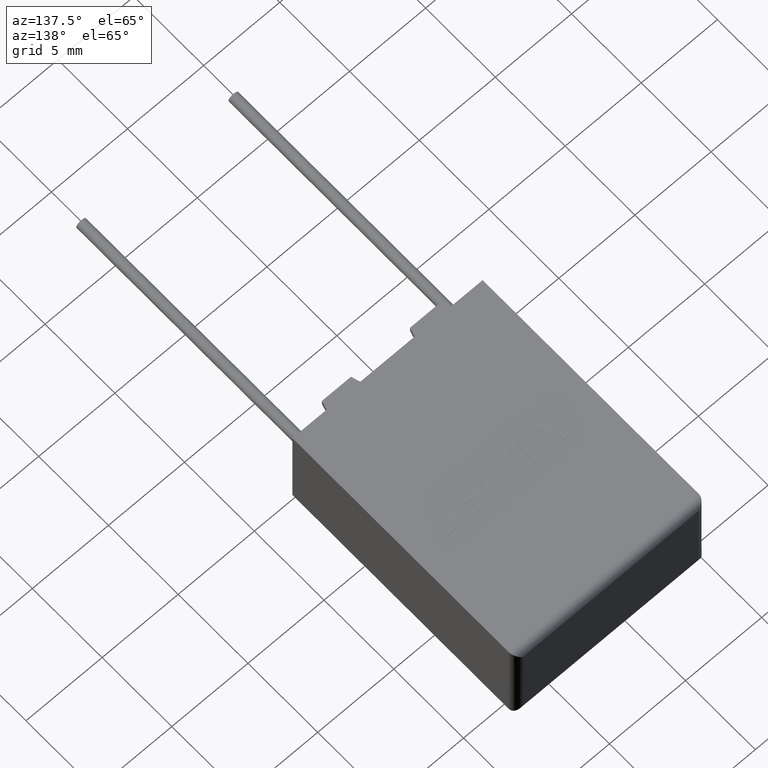
[diagram: clean part render]
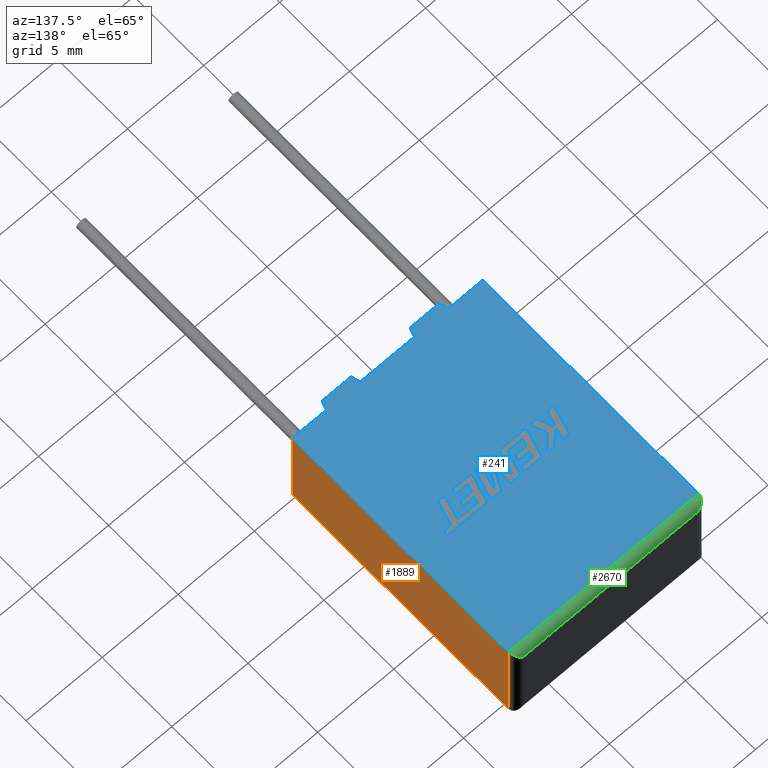
[diagram: same view with three faces highlighted in distinct colors, each labeled with its STEP entity id]
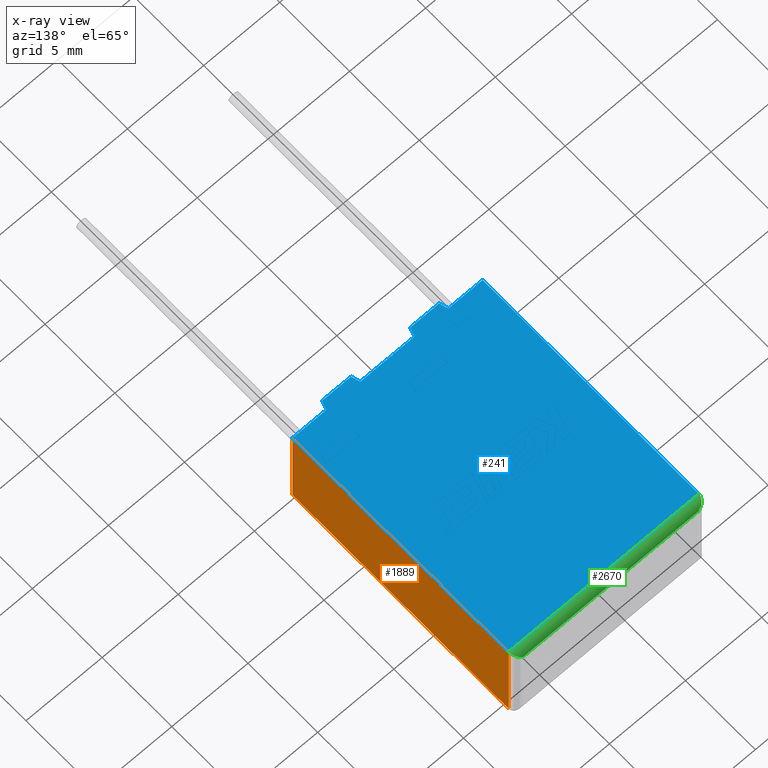
[diagram: x-ray of the same camera — body ghosted, the three highlighted faces saturated]
A machine part, auxiliary view with three faces highlighted in distinct colors.
The next image is the same camera in x-ray (body ghosted, the three faces saturated) — at least one of them is partly hidden behind the body in this view.
Their STEP definitions:

[orange] entity #1889 — the highlighted planar face has unit normal (-1, 0, 0).
#214 = CARTESIAN_POINT ( 'NONE',  ( 12.50000000000000000, 0.0000000000000000000, 6.500000000000000000 ) ) ;
#268 = DIRECTION ( 'NONE',  ( 0.0000000000000000000, 0.0000000000000000000, 1.000000000000000000 ) ) ;
#272 = EDGE_CURVE ( 'NONE', #1035, #3236, #1543, .T. ) ;
#351 = CARTESIAN_POINT ( 'NONE',  ( 12.50000000000000000, 0.0000000000000000000, 6.500000000000000000 ) ) ;
#511 = CARTESIAN_POINT ( 'NONE',  ( 12.50000000000000000, 0.0000000000000000000, 6.500000000000000000 ) ) ;
#590 = LINE ( 'NONE', #2621, #3024 ) ;
#599 = EDGE_CURVE ( 'NONE', #3121, #1035, #2604, .T. ) ;
#623 = CARTESIAN_POINT ( 'NONE',  ( 12.50000000000000000, 0.0000000000000000000, 6.500000000000000000 ) ) ;
#659 = LINE ( 'NONE', #623, #775 ) ;
#707 = ORIENTED_EDGE ( 'NONE', *, *, #599, .T. ) ;
#708 = DIRECTION ( 'NONE',  ( -0.0000000000000000000, -0.0000000000000000000, -1.000000000000000000 ) ) ;
#775 = VECTOR ( 'NONE', #1250, 1000.000000000000000 ) ;
#816 = FACE_OUTER_BOUND ( 'NONE', #2241, .T. ) ;
#1031 = EDGE_CURVE ( 'NONE', #3236, #2061, #590, .T. ) ;
#1035 = VERTEX_POINT ( 'NONE', #3159 ) ;
#1172 = VECTOR ( 'NONE', #708, 1000.000000000000000 ) ;
#1199 = ORIENTED_EDGE ( 'NONE', *, *, #1031, .T. ) ;
#1250 = DIRECTION ( 'NONE',  ( 0.0000000000000000000, 1.000000000000000000, 0.0000000000000000000 ) ) ;
#1356 = DIRECTION ( 'NONE',  ( 0.0000000000000000000, 1.000000000000000000, 0.0000000000000000000 ) ) ;
#1478 = CARTESIAN_POINT ( 'NONE',  ( 12.50000000000000000, 15.50000000000000000, 0.0000000000000000000 ) ) ;
#1499 = PLANE ( 'NONE',  #3210 ) ;
#1543 = LINE ( 'NONE', #2837, #3173 ) ;
#1590 = EDGE_CURVE ( 'NONE', #3121, #2061, #659, .T. ) ;
#1738 = DIRECTION ( 'NONE',  ( -1.000000000000000000, 0.0000000000000000000, 0.0000000000000000000 ) ) ;
#1889 = ADVANCED_FACE ( 'NONE', ( #816 ), #1499, .F. ) ;
#1948 = ORIENTED_EDGE ( 'NONE', *, *, #272, .T. ) ;
#2061 = VERTEX_POINT ( 'NONE', #2356 ) ;
#2241 = EDGE_LOOP ( 'NONE', ( #1948, #1199, #2643, #707 ) ) ;
#2356 = CARTESIAN_POINT ( 'NONE',  ( 12.50000000000000000, 15.50000000000000000, 6.500000000000000000 ) ) ;
#2604 = LINE ( 'NONE', #214, #1172 ) ;
#2621 = CARTESIAN_POINT ( 'NONE',  ( 12.50000000000000000, 15.50000000000000000, 6.500000000000000000 ) ) ;
#2643 = ORIENTED_EDGE ( 'NONE', *, *, #1590, .F. ) ;
#2837 = CARTESIAN_POINT ( 'NONE',  ( 12.50000000000000000, 0.0000000000000000000, 0.0000000000000000000 ) ) ;
#3024 = VECTOR ( 'NONE', #3149, 1000.000000000000000 ) ;
#3121 = VERTEX_POINT ( 'NONE', #351 ) ;
#3149 = DIRECTION ( 'NONE',  ( -0.0000000000000000000, -0.0000000000000000000, 1.000000000000000000 ) ) ;
#3159 = CARTESIAN_POINT ( 'NONE',  ( 12.50000000000000000, 0.0000000000000000000, 0.0000000000000000000 ) ) ;
#3173 = VECTOR ( 'NONE', #1356, 1000.000000000000000 ) ;
#3210 = AXIS2_PLACEMENT_3D ( 'NONE', #511, #1738, #268 ) ;
#3236 = VERTEX_POINT ( 'NONE', #1478 ) ;

[blue] entity #241 — the highlighted planar face has unit normal (0, 0, -1).
#122 = LINE ( 'NONE', #1522, #859 ) ;
#168 = VERTEX_POINT ( 'NONE', #547 ) ;
#185 = VERTEX_POINT ( 'NONE', #845 ) ;
#186 = CARTESIAN_POINT ( 'NONE',  ( 0.0000000000000000000, 15.50000000000000000, 6.500000000000000000 ) ) ;
#241 = ADVANCED_FACE ( 'NONE', ( #2654 ), #2095, .F. ) ;
#271 = CARTESIAN_POINT ( 'NONE',  ( 10.10000000000000100, -0.4999999999999998900, 6.500000000000000000 ) ) ;
#297 = CARTESIAN_POINT ( 'NONE',  ( 10.25000000000000000, 1.377727649040772600E-016, 6.500000000000000000 ) ) ;
#310 = LINE ( 'NONE', #2049, #2891 ) ;
#331 = CARTESIAN_POINT ( 'NONE',  ( 2.250000000000000400, 0.0000000000000000000, 6.500000000000000000 ) ) ;
#351 = CARTESIAN_POINT ( 'NONE',  ( 12.50000000000000000, 0.0000000000000000000, 6.500000000000000000 ) ) ;
#414 = VECTOR ( 'NONE', #3065, 1000.000000000000000 ) ;
#528 = CARTESIAN_POINT ( 'NONE',  ( 10.10000000000000100, -0.4999999999999998900, 6.500000000000000000 ) ) ;
#547 = CARTESIAN_POINT ( 'NONE',  ( 10.25000000000000000, 0.0000000000000000000, 6.500000000000000000 ) ) ;
#552 = DIRECTION ( 'NONE',  ( 1.000000000000000000, 0.0000000000000000000, 0.0000000000000000000 ) ) ;
#559 = CARTESIAN_POINT ( 'NONE',  ( 4.312500000000000000, -0.5000000000000000000, 6.500000000000000000 ) ) ;
#623 = CARTESIAN_POINT ( 'NONE',  ( 12.50000000000000000, 0.0000000000000000000, 6.500000000000000000 ) ) ;
#658 = VECTOR ( 'NONE', #2472, 1000.000000000000000 ) ;
#659 = LINE ( 'NONE', #623, #775 ) ;
#775 = VECTOR ( 'NONE', #1250, 1000.000000000000000 ) ;
#837 = VERTEX_POINT ( 'NONE', #528 ) ;
#845 = CARTESIAN_POINT ( 'NONE',  ( 0.0000000000000000000, 0.0000000000000000000, 6.500000000000000000 ) ) ;
#859 = VECTOR ( 'NONE', #1813, 1000.000000000000200 ) ;
#861 = VECTOR ( 'NONE', #2422, 1000.000000000000000 ) ;
#901 = LINE ( 'NONE', #297, #2084 ) ;
#1041 = VERTEX_POINT ( 'NONE', #1892 ) ;
#1056 = VECTOR ( 'NONE', #1185, 1000.000000000000000 ) ;
#1072 = DIRECTION ( 'NONE',  ( 0.2873478855663453300, -0.9578262852211513200, 0.0000000000000000000 ) ) ;
#1138 = LINE ( 'NONE', #1149, #1056 ) ;
#1149 = CARTESIAN_POINT ( 'NONE',  ( 0.0000000000000000000, 0.0000000000000000000, 6.500000000000000000 ) ) ;
#1160 = CARTESIAN_POINT ( 'NONE',  ( 8.037499999999999600, 2.732493170597532200E-016, 6.500000000000000000 ) ) ;
#1185 = DIRECTION ( 'NONE',  ( 1.000000000000000000, 0.0000000000000000000, 0.0000000000000000000 ) ) ;
#1208 = ORIENTED_EDGE ( 'NONE', *, *, #2193, .F. ) ;
#1237 = LINE ( 'NONE', #271, #3031 ) ;
#1248 = ORIENTED_EDGE ( 'NONE', *, *, #1590, .T. ) ;
#1250 = DIRECTION ( 'NONE',  ( 0.0000000000000000000, 1.000000000000000000, 0.0000000000000000000 ) ) ;
#1257 = ORIENTED_EDGE ( 'NONE', *, *, #2776, .T. ) ;
#1262 = LINE ( 'NONE', #2840, #2681 ) ;
#1270 = VECTOR ( 'NONE', #1819, 1000.000000000000200 ) ;
#1289 = CARTESIAN_POINT ( 'NONE',  ( 2.400000000000000400, -0.4999999999999998900, 6.500000000000000000 ) ) ;
#1342 = LINE ( 'NONE', #2187, #2491 ) ;
#1409 = ORIENTED_EDGE ( 'NONE', *, *, #3018, .T. ) ;
#1455 = EDGE_LOOP ( 'NONE', ( #1248, #2270, #1409, #1257, #2586, #2313, #3160, #2018, #2605, #1208, #2075, #2514 ) ) ;
#1462 = EDGE_CURVE ( 'NONE', #3154, #1041, #2191, .T. ) ;
#1522 = CARTESIAN_POINT ( 'NONE',  ( 8.187500000000000000, -0.5000000000000000000, 6.500000000000000000 ) ) ;
#1590 = EDGE_CURVE ( 'NONE', #3121, #2061, #659, .T. ) ;
#1622 = DIRECTION ( 'NONE',  ( 0.0000000000000000000, 0.0000000000000000000, -1.000000000000000000 ) ) ;
#1752 = VERTEX_POINT ( 'NONE', #1160 ) ;
#1771 = EDGE_CURVE ( 'NONE', #1041, #1752, #1138, .T. ) ;
#1813 = DIRECTION ( 'NONE',  ( -0.2873478855663451600, 0.9578262852211514300, 0.0000000000000000000 ) ) ;
#1819 = DIRECTION ( 'NONE',  ( 0.2873478855663451600, 0.9578262852211514300, 0.0000000000000000000 ) ) ;
#1842 = CARTESIAN_POINT ( 'NONE',  ( 0.0000000000000000000, 0.0000000000000000000, 6.500000000000000000 ) ) ;
#1892 = CARTESIAN_POINT ( 'NONE',  ( 4.462500000000000400, 2.732493170597532200E-016, 6.500000000000000000 ) ) ;
#1894 = EDGE_CURVE ( 'NONE', #1910, #3154, #2977, .T. ) ;
#1910 = VERTEX_POINT ( 'NONE', #2753 ) ;
#1925 = EDGE_CURVE ( 'NONE', #2175, #1752, #122, .T. ) ;
#1943 = EDGE_CURVE ( 'NONE', #168, #3121, #310, .T. ) ;
#2018 = ORIENTED_EDGE ( 'NONE', *, *, #1771, .T. ) ;
#2049 = CARTESIAN_POINT ( 'NONE',  ( 0.0000000000000000000, 0.0000000000000000000, 6.500000000000000000 ) ) ;
#2061 = VERTEX_POINT ( 'NONE', #2356 ) ;
#2075 = ORIENTED_EDGE ( 'NONE', *, *, #2543, .F. ) ;
#2083 = DIRECTION ( 'NONE',  ( -0.2873478855663453300, -0.9578262852211513200, 0.0000000000000000000 ) ) ;
#2084 = VECTOR ( 'NONE', #2083, 1000.000000000000200 ) ;
#2095 = PLANE ( 'NONE',  #2876 ) ;
#2104 = DIRECTION ( 'NONE',  ( -1.000000000000000000, -5.669030967244467200E-017, 0.0000000000000000000 ) ) ;
#2175 = VERTEX_POINT ( 'NONE', #2663 ) ;
#2187 = CARTESIAN_POINT ( 'NONE',  ( 0.0000000000000000000, 0.0000000000000000000, 6.500000000000000000 ) ) ;
#2191 = LINE ( 'NONE', #559, #1270 ) ;
#2193 = EDGE_CURVE ( 'NONE', #837, #2175, #1237, .T. ) ;
#2270 = ORIENTED_EDGE ( 'NONE', *, *, #2893, .T. ) ;
#2302 = DIRECTION ( 'NONE',  ( -1.000000000000000000, 0.0000000000000000000, -0.0000000000000000000 ) ) ;
#2313 = ORIENTED_EDGE ( 'NONE', *, *, #1894, .T. ) ;
#2319 = CARTESIAN_POINT ( 'NONE',  ( 0.0000000000000000000, 15.50000000000000000, 6.500000000000000000 ) ) ;
#2356 = CARTESIAN_POINT ( 'NONE',  ( 12.50000000000000000, 15.50000000000000000, 6.500000000000000000 ) ) ;
#2422 = DIRECTION ( 'NONE',  ( -1.000000000000000000, 0.0000000000000000000, 0.0000000000000000000 ) ) ;
#2472 = DIRECTION ( 'NONE',  ( 1.000000000000000000, -5.669030967244467200E-017, 0.0000000000000000000 ) ) ;
#2491 = VECTOR ( 'NONE', #2960, 1000.000000000000000 ) ;
#2514 = ORIENTED_EDGE ( 'NONE', *, *, #1943, .T. ) ;
#2543 = EDGE_CURVE ( 'NONE', #168, #837, #901, .T. ) ;
#2563 = VERTEX_POINT ( 'NONE', #331 ) ;
#2567 = LINE ( 'NONE', #2569, #414 ) ;
#2569 = CARTESIAN_POINT ( 'NONE',  ( 0.0000000000000000000, 0.0000000000000000000, 6.500000000000000000 ) ) ;
#2586 = ORIENTED_EDGE ( 'NONE', *, *, #3103, .T. ) ;
#2605 = ORIENTED_EDGE ( 'NONE', *, *, #1925, .F. ) ;
#2654 = FACE_OUTER_BOUND ( 'NONE', #1455, .T. ) ;
#2663 = CARTESIAN_POINT ( 'NONE',  ( 8.187500000000000000, -0.5000000000000000000, 6.500000000000000000 ) ) ;
#2681 = VECTOR ( 'NONE', #1072, 1000.000000000000200 ) ;
#2695 = VERTEX_POINT ( 'NONE', #2319 ) ;
#2753 = CARTESIAN_POINT ( 'NONE',  ( 2.400000000000000400, -0.4999999999999998900, 6.500000000000000000 ) ) ;
#2776 = EDGE_CURVE ( 'NONE', #185, #2563, #1342, .T. ) ;
#2783 = CARTESIAN_POINT ( 'NONE',  ( 4.312500000000000000, -0.5000000000000000000, 6.500000000000000000 ) ) ;
#2840 = CARTESIAN_POINT ( 'NONE',  ( 2.250000000000000400, 1.377727649040772600E-016, 6.500000000000000000 ) ) ;
#2876 = AXIS2_PLACEMENT_3D ( 'NONE', #1842, #1622, #2302 ) ;
#2891 = VECTOR ( 'NONE', #552, 1000.000000000000000 ) ;
#2893 = EDGE_CURVE ( 'NONE', #2061, #2695, #3050, .T. ) ;
#2960 = DIRECTION ( 'NONE',  ( 1.000000000000000000, 0.0000000000000000000, 0.0000000000000000000 ) ) ;
#2977 = LINE ( 'NONE', #1289, #658 ) ;
#3018 = EDGE_CURVE ( 'NONE', #2695, #185, #2567, .T. ) ;
#3031 = VECTOR ( 'NONE', #2104, 1000.000000000000000 ) ;
#3050 = LINE ( 'NONE', #186, #861 ) ;
#3065 = DIRECTION ( 'NONE',  ( -0.0000000000000000000, -1.000000000000000000, -0.0000000000000000000 ) ) ;
#3103 = EDGE_CURVE ( 'NONE', #2563, #1910, #1262, .T. ) ;
#3121 = VERTEX_POINT ( 'NONE', #351 ) ;
#3154 = VERTEX_POINT ( 'NONE', #2783 ) ;
#3160 = ORIENTED_EDGE ( 'NONE', *, *, #1462, .T. ) ;

[green] entity #2670 — the highlighted cylindrical surface (edge-blend (fillet) strip) has radius 0.5 mm, axis along (-1, 0, 0).
#24 = CARTESIAN_POINT ( 'NONE',  ( 12.50000000000000000, 15.50000000000000000, 6.500000000000000000 ) ) ;
#186 = CARTESIAN_POINT ( 'NONE',  ( 0.0000000000000000000, 15.50000000000000000, 6.500000000000000000 ) ) ;
#488 = CARTESIAN_POINT ( 'NONE',  ( 3.586907429118598600E-017, 15.79289321881345000, 6.500000000000000900 ) ) ;
#527 = AXIS2_PLACEMENT_3D ( 'NONE', #2100, #1393, #1118 ) ;
#550 = ORIENTED_EDGE ( 'NONE', *, *, #1542, .F. ) ;
#655 = ORIENTED_EDGE ( 'NONE', *, *, #1874, .T. ) ;
#739 = CARTESIAN_POINT ( 'NONE',  ( 0.0000000000000000000, 15.50000000000000000, 6.500000000000000000 ) ) ;
#750 = CARTESIAN_POINT ( 'NONE',  ( 0.4999999999999998900, 16.00000000000000000, 6.000000000000000000 ) ) ;
#794 = CARTESIAN_POINT ( 'NONE',  ( 12.50000000000000000, 15.79289321881345400, 6.500000000000000900 ) ) ;
#861 = VECTOR ( 'NONE', #2422, 1000.000000000000000 ) ;
#872 = EDGE_LOOP ( 'NONE', ( #655, #3086, #1620, #550 ) ) ;
#878 = EDGE_CURVE ( 'NONE', #2111, #2061, #2097, .T. ) ;
#1118 = DIRECTION ( 'NONE',  ( 0.0000000000000000000, 0.0000000000000000000, 1.000000000000000000 ) ) ;
#1140 = LINE ( 'NONE', #1958, #1888 ) ;
#1393 = DIRECTION ( 'NONE',  ( -1.000000000000000000, 0.0000000000000000000, 0.0000000000000000000 ) ) ;
#1456 = DIRECTION ( 'NONE',  ( 1.000000000000000000, -0.0000000000000000000, -0.0000000000000000000 ) ) ;
#1542 = EDGE_CURVE ( 'NONE', #2252, #2111, #1140, .T. ) ;
#1560 = CARTESIAN_POINT ( 'NONE',  ( 12.29289321881345400, 16.00000000000000000, 6.292893218813453000 ) ) ;
#1605 = CARTESIAN_POINT ( 'NONE',  ( 12.00000000000000000, 16.00000000000000000, 6.000000000000000000 ) ) ;
#1620 = ORIENTED_EDGE ( 'NONE', *, *, #878, .F. ) ;
#1795 = CARTESIAN_POINT ( 'NONE',  ( 12.00000000000000000, 16.00000000000000000, 6.000000000000000000 ) ) ;
#1874 = EDGE_CURVE ( 'NONE', #2252, #2695, #3036, .T. ) ;
#1887 = CYLINDRICAL_SURFACE ( 'NONE', #527, 0.5000000000000004400 ) ;
#1888 = VECTOR ( 'NONE', #1456, 1000.000000000000000 ) ;
#1958 = CARTESIAN_POINT ( 'NONE',  ( 0.0000000000000000000, 16.00000000000000000, 6.000000000000000000 ) ) ;
#2061 = VERTEX_POINT ( 'NONE', #2356 ) ;
#2097 =( BOUNDED_CURVE ( )  B_SPLINE_CURVE ( 3, ( #1795, #1560, #794, #24 ),
 .UNSPECIFIED., .F., .F. ) 
 B_SPLINE_CURVE_WITH_KNOTS ( ( 4, 4 ),
 ( 1.570796326794896600, 3.141592653589793100 ),
 .UNSPECIFIED. ) 
 CURVE ( )  GEOMETRIC_REPRESENTATION_ITEM ( )  RATIONAL_B_SPLINE_CURVE ( ( 1.000000000000000000, 0.8047378541243649400, 0.8047378541243649400, 1.000000000000000000 ) ) 
 REPRESENTATION_ITEM ( '' )  );
#2100 = CARTESIAN_POINT ( 'NONE',  ( 0.0000000000000000000, 15.50000000000000000, 6.000000000000000000 ) ) ;
#2111 = VERTEX_POINT ( 'NONE', #1605 ) ;
#2252 = VERTEX_POINT ( 'NONE', #2390 ) ;
#2319 = CARTESIAN_POINT ( 'NONE',  ( 0.0000000000000000000, 15.50000000000000000, 6.500000000000000000 ) ) ;
#2356 = CARTESIAN_POINT ( 'NONE',  ( 12.50000000000000000, 15.50000000000000000, 6.500000000000000000 ) ) ;
#2390 = CARTESIAN_POINT ( 'NONE',  ( 0.4999999999999998900, 16.00000000000000000, 6.000000000000000000 ) ) ;
#2422 = DIRECTION ( 'NONE',  ( -1.000000000000000000, 0.0000000000000000000, 0.0000000000000000000 ) ) ;
#2670 = ADVANCED_FACE ( 'NONE', ( #3097 ), #1887, .T. ) ;
#2695 = VERTEX_POINT ( 'NONE', #2319 ) ;
#2893 = EDGE_CURVE ( 'NONE', #2061, #2695, #3050, .T. ) ;
#3005 = CARTESIAN_POINT ( 'NONE',  ( 0.2071067811865474300, 15.99999999999999600, 6.292893218813452100 ) ) ;
#3036 =( BOUNDED_CURVE ( )  B_SPLINE_CURVE ( 3, ( #750, #3005, #488, #739 ),
 .UNSPECIFIED., .F., .F. ) 
 B_SPLINE_CURVE_WITH_KNOTS ( ( 4, 4 ),
 ( 1.570796326794896800, 3.141592653589793100 ),
 .UNSPECIFIED. ) 
 CURVE ( )  GEOMETRIC_REPRESENTATION_ITEM ( )  RATIONAL_B_SPLINE_CURVE ( ( 1.000000000000000000, 0.8047378541243650500, 0.8047378541243650500, 1.000000000000000000 ) ) 
 REPRESENTATION_ITEM ( '' )  );
#3050 = LINE ( 'NONE', #186, #861 ) ;
#3086 = ORIENTED_EDGE ( 'NONE', *, *, #2893, .F. ) ;
#3097 = FACE_OUTER_BOUND ( 'NONE', #872, .T. ) ;